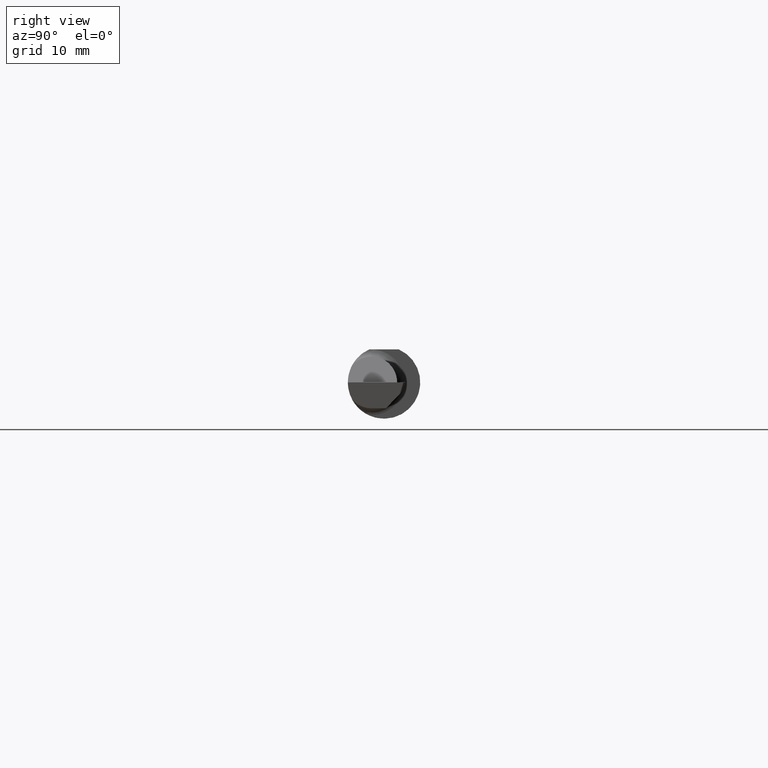
[diagram: clean part render]
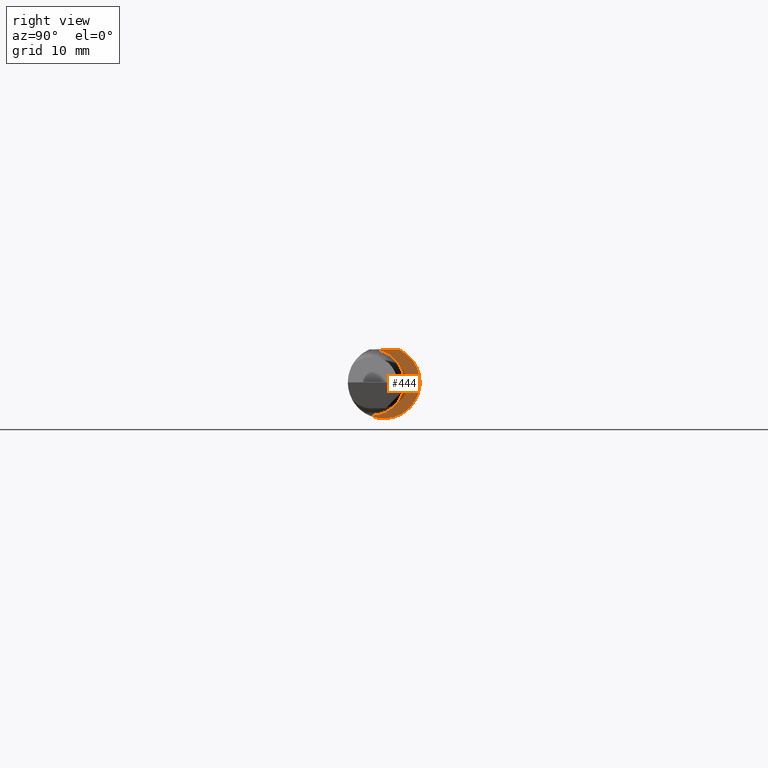
[diagram: same view with one face highlighted and labeled with its STEP entity id]
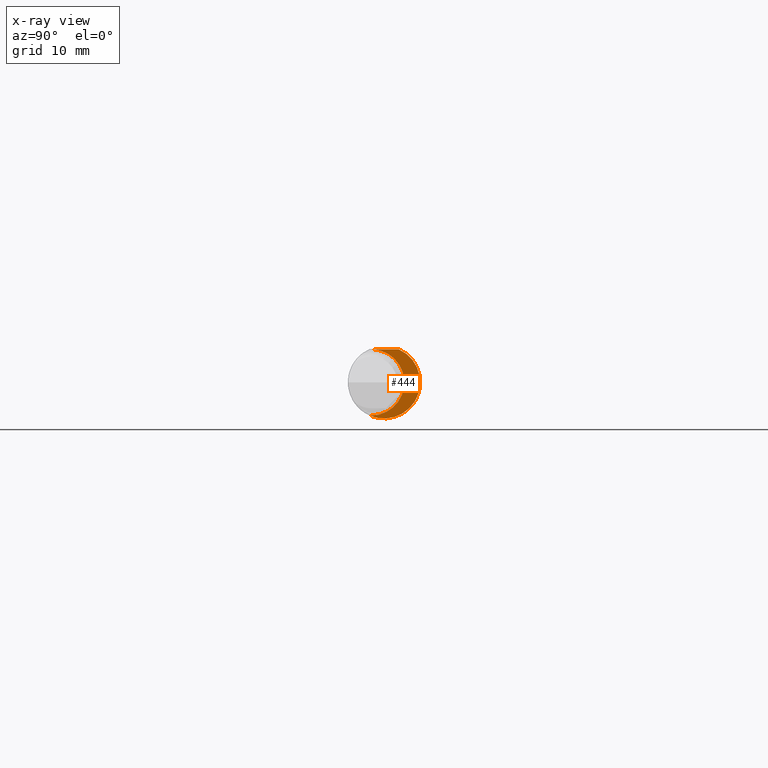
[diagram: x-ray of the same camera — body ghosted, the highlighted face saturated]
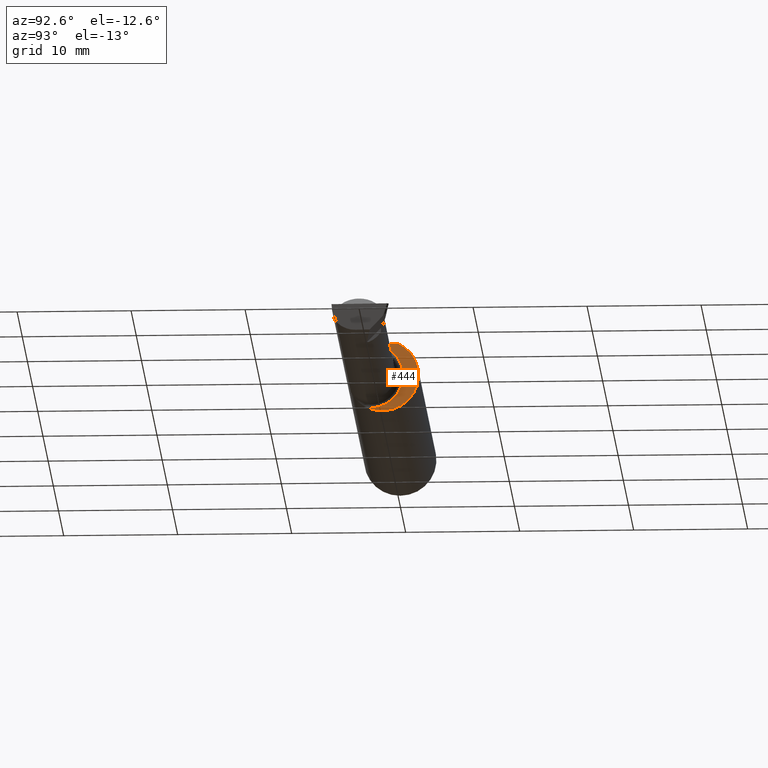
[diagram: same view with one face highlighted and labeled with its STEP entity id]
A machine part, right view. The second image highlights one B-rep face of the part: STEP entity #444.
The next image is the same camera in x-ray: the body ghosted, the highlighted face saturated — about 0% of this face is hidden behind the body in this view.
A second angle (auxiliary view) of the same face is appended — the face is thin or edge-on in the first view.
In plain terms, the highlighted planar face has unit normal (1, 0, 0).
Its self-contained STEP definition (entity closure, byte-faithful):
#16 = ORIENTED_EDGE ( 'NONE', *, *, #517, .T. ) ;
#23 = FACE_OUTER_BOUND ( 'NONE', #472, .T. ) ;
#37 = EDGE_CURVE ( 'NONE', #79, #194, #737, .T. ) ;
#64 = VERTEX_POINT ( 'NONE', #275 ) ;
#74 = CARTESIAN_POINT ( 'NONE',  ( 1.360000000000000320, -0.05106022727272754858, -0.1139314517192570597 ) ) ;
#79 = VERTEX_POINT ( 'NONE', #410 ) ;
#82 = DIRECTION ( 'NONE',  ( -1.000000000000000000, -0.000000000000000000, -0.000000000000000000 ) ) ;
#126 = CARTESIAN_POINT ( 'NONE',  ( 1.360000000000000320, 0.1748500000000000609, 0.1138500000000000068 ) ) ;
#178 = DIRECTION ( 'NONE',  ( 0.000000000000000000, 0.000000000000000000, 1.000000000000000000 ) ) ;
#194 = VERTEX_POINT ( 'NONE', #683 ) ;
#199 = ORIENTED_EDGE ( 'NONE', *, *, #37, .T. ) ;
#218 = CIRCLE ( 'NONE', #540, 0.1248500000000000026 ) ;
#275 = CARTESIAN_POINT ( 'NONE',  ( 1.360000000000000320, 0.05124158467494921432, 0.1138500000000000206 ) ) ;
#281 = VECTOR ( 'NONE', #518, 39.37007874015748143 ) ;
#345 = CARTESIAN_POINT ( 'NONE',  ( 1.360000000000000320, -0.04399999999999999745, 0.000000000000000000 ) ) ;
#346 = DIRECTION ( 'NONE',  ( 0.000000000000000000, 0.000000000000000000, -1.000000000000000000 ) ) ;
#349 = DIRECTION ( 'NONE',  ( 0.000000000000000000, 0.000000000000000000, 1.000000000000000000 ) ) ;
#353 = AXIS2_PLACEMENT_3D ( 'NONE', #655, #82, #178 ) ;
#386 = ORIENTED_EDGE ( 'NONE', *, *, #714, .T. ) ;
#393 = AXIS2_PLACEMENT_3D ( 'NONE', #534, #667, #411 ) ;
#410 = CARTESIAN_POINT ( 'NONE',  ( 1.360000000000000320, -0.03572957074874789918, 0.1138500000000000345 ) ) ;
#411 = DIRECTION ( 'NONE',  ( 0.000000000000000000, 0.000000000000000000, -1.000000000000000000 ) ) ;
#417 = EDGE_CURVE ( 'NONE', #530, #64, #218, .T. ) ;
#444 = ADVANCED_FACE ( 'NONE', ( #23 ), #483, .T. ) ;
#472 = EDGE_LOOP ( 'NONE', ( #699, #16, #199, #386 ) ) ;
#483 = PLANE ( 'NONE',  #393 ) ;
#517 = EDGE_CURVE ( 'NONE', #64, #79, #698, .T. ) ;
#518 = DIRECTION ( 'NONE',  ( 0.000000000000000000, -1.000000000000000000, 1.464745492742491612E-16 ) ) ;
#530 = VERTEX_POINT ( 'NONE', #74 ) ;
#534 = CARTESIAN_POINT ( 'NONE',  ( 1.360000000000000320, 0.07014999999999989300, 0.000000000000000000 ) ) ;
#540 = AXIS2_PLACEMENT_3D ( 'NONE', #601, #730, #346 ) ;
#601 = CARTESIAN_POINT ( 'NONE',  ( 1.360000000000000320, 0.000000000000000000, 0.000000000000000000 ) ) ;
#605 = AXIS2_PLACEMENT_3D ( 'NONE', #345, #801, #349 ) ;
#655 = CARTESIAN_POINT ( 'NONE',  ( 1.360000000000000320, -0.04399999999999999745, 0.000000000000000000 ) ) ;
#667 = DIRECTION ( 'NONE',  ( 1.000000000000000000, 0.000000000000000000, 0.000000000000000000 ) ) ;
#683 = CARTESIAN_POINT ( 'NONE',  ( 1.360000000000000320, -0.04399999999999998357, -0.1141499999999998904 ) ) ;
#698 = LINE ( 'NONE', #126, #281 ) ;
#699 = ORIENTED_EDGE ( 'NONE', *, *, #417, .T. ) ;
#714 = EDGE_CURVE ( 'NONE', #194, #530, #775, .T. ) ;
#730 = DIRECTION ( 'NONE',  ( 1.000000000000000000, 0.000000000000000000, 0.000000000000000000 ) ) ;
#737 = CIRCLE ( 'NONE', #605, 0.1141499999999998904 ) ;
#775 = CIRCLE ( 'NONE', #353, 0.1141499999999998904 ) ;
#801 = DIRECTION ( 'NONE',  ( -1.000000000000000000, -0.000000000000000000, -0.000000000000000000 ) ) ;